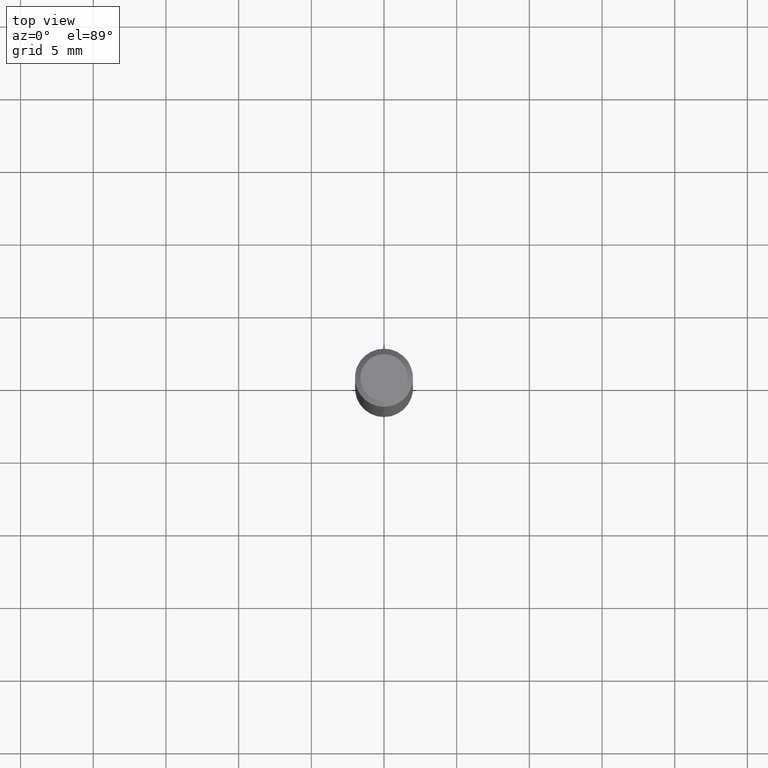
[diagram: clean part render]
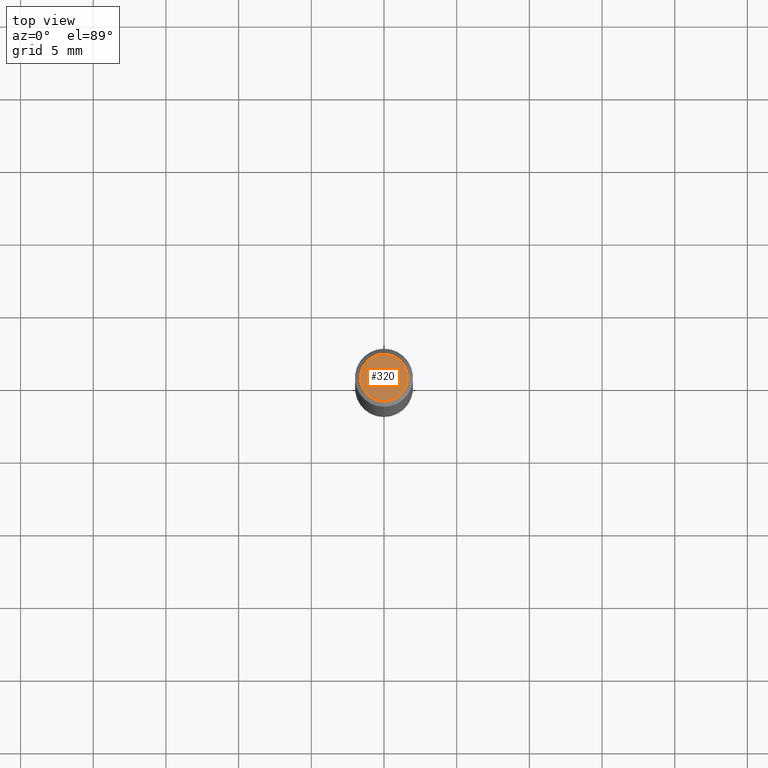
[diagram: same view with one face highlighted and labeled with its STEP entity id]
A machine part, top view. The second image highlights one B-rep face of the part: STEP entity #320.
In plain terms, the highlighted planar face has unit normal (0, -0, -1).
Its self-contained STEP definition (entity closure, byte-faithful):
#23 = FACE_OUTER_BOUND ( 'NONE', #324, .T. ) ;
#30 = AXIS2_PLACEMENT_3D ( 'NONE', #342, #500, #141 ) ;
#32 = CARTESIAN_POINT ( 'NONE',  ( 4.114225145606722561E-46, -5.873859092544759486E-32, -1.682363633886359709E-17 ) ) ;
#76 = CARTESIAN_POINT ( 'NONE',  ( 4.975360907851465623E-16, 0.06374999999999998723, -2.394024591375393642E-16 ) ) ;
#129 = CIRCLE ( 'NONE', #30, 0.06374999999999998723 ) ;
#140 = DIRECTION ( 'NONE',  ( 6.982962677686265922E-15, 1.000000000000000000, -3.491432514489032662E-15 ) ) ;
#141 = DIRECTION ( 'NONE',  ( -6.982962677686265922E-15, -1.000000000000000000, 3.491432514489032662E-15 ) ) ;
#176 = PLANE ( 'NONE',  #238 ) ;
#201 = ORIENTED_EDGE ( 'NONE', *, *, #386, .T. ) ;
#231 = AXIS2_PLACEMENT_3D ( 'NONE', #32, #464, #380 ) ;
#238 = AXIS2_PLACEMENT_3D ( 'NONE', #339, #495, #140 ) ;
#320 = ADVANCED_FACE ( 'NONE', ( #23 ), #176, .F. ) ;
#324 = EDGE_LOOP ( 'NONE', ( #201, #328 ) ) ;
#328 = ORIENTED_EDGE ( 'NONE', *, *, #370, .T. ) ;
#339 = CARTESIAN_POINT ( 'NONE',  ( 4.451638707024993845E-16, 0.06374999999999998723, -2.309906409681076211E-16 ) ) ;
#342 = CARTESIAN_POINT ( 'NONE',  ( 4.114225145606722561E-46, -5.873859092544759486E-32, -1.682363633886359709E-17 ) ) ;
#355 = VERTEX_POINT ( 'NONE', #417 ) ;
#370 = EDGE_CURVE ( 'NONE', #355, #482, #129, .T. ) ;
#380 = DIRECTION ( 'NONE',  ( -6.982962677686265922E-15, -1.000000000000000000, 3.491432514489032662E-15 ) ) ;
#386 = EDGE_CURVE ( 'NONE', #482, #355, #457, .T. ) ;
#417 = CARTESIAN_POINT ( 'NONE',  ( -4.888104823412212925E-16, -0.06374999999999998723, 2.057551864598121700E-16 ) ) ;
#457 = CIRCLE ( 'NONE', #231, 0.06374999999999998723 ) ;
#464 = DIRECTION ( 'NONE',  ( -2.445502900049389790E-29, 3.491432514489032662E-15, 1.000000000000000000 ) ) ;
#482 = VERTEX_POINT ( 'NONE', #76 ) ;
#495 = DIRECTION ( 'NONE',  ( 2.445502900049389510E-29, -3.491432514489032662E-15, -1.000000000000000000 ) ) ;
#500 = DIRECTION ( 'NONE',  ( -2.445502900049389790E-29, 3.491432514489032662E-15, 1.000000000000000000 ) ) ;